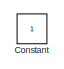
[diagram: root canvas - part 1/2, top left region]
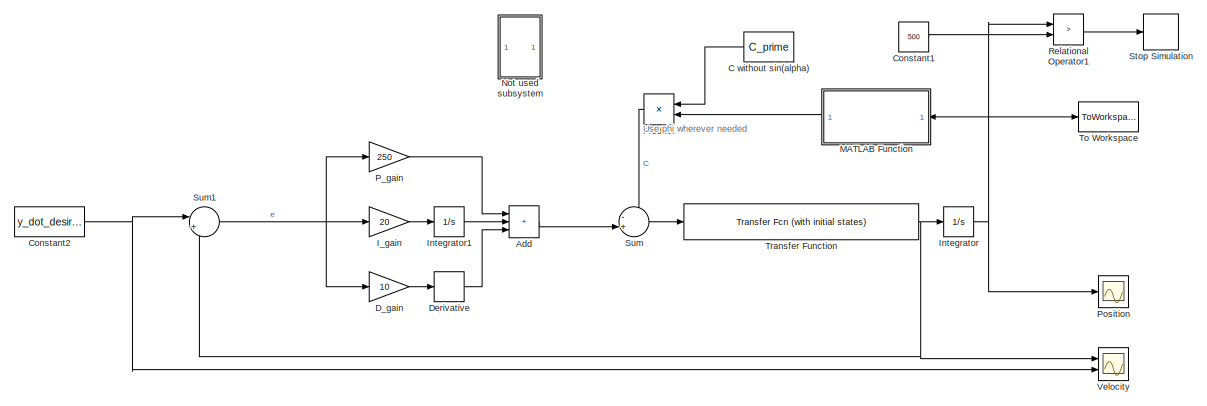
[diagram: root canvas - part 2/2, most of the canvas]
MODEL slx_dcd10c392fea
KIND model
CONFIG AbsTol = auto
CONFIG EnableMultiTasking = off
CONFIG FixedStep = 0.001
CONFIG MaxStep = auto
CONFIG MinStep = auto
CONFIG RelTol = 1e-3
CONFIG SampleTimeConstraint = Unconstrained
CONFIG SolverName = ode4
CONFIG StartTime = 0.0
CONFIG StopTime = 1200
WORKSPACE source: mxarray member
WORKSPACE A: Simulink.Parameter (value not decoded)
WORKSPACE B: Simulink.Parameter (value not decoded)
WORKSPACE C_prime: Simulink.Parameter (value not decoded)
WORKSPACE D: Simulink.Parameter (value not decoded)
WORKSPACE Iw: Simulink.Parameter (value not decoded)
WORKSPACE Kt = 0.0758
WORKSPACE Kv = 0.076
WORKSPACE mb = 0.4
WORKSPACE mc = 0.2
WORKSPACE mm = 0.34
WORKSPACE mt: Simulink.Parameter (value not decoded)
WORKSPACE mw: Simulink.Parameter (value not decoded)
WORKSPACE r = 0.39
WORKSPACE y_dot_desired = 0.5
BLOCK [Sum] Add
  IconShape = rectangular
  Inputs = +++
  Ports = [3, 1]
BLOCK [Constant] C without sin(alpha)
  Value = C_prime
BLOCK [Constant] Constant
  IOType = siggen
BLOCK [Constant] Constant1
  Value = 500
BLOCK [Constant] Constant2
  Value = y_dot_desired
BLOCK [Gain] D_gain
  Gain = 10
BLOCK [Derivative] Derivative
BLOCK [Gain] I_gain
  Gain = 20
BLOCK [Integrator] Integrator
  Ports = [1, 1]
BLOCK [Integrator] Integrator1
  Ports = [1, 1]
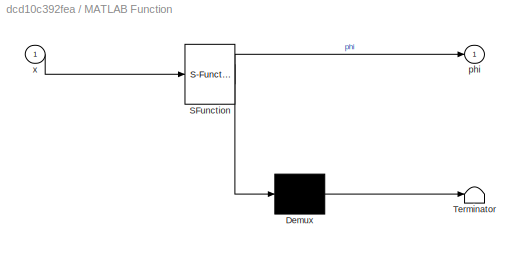
BLOCK [SubSystem] MATLAB Function
  ErrorFcn = Stateflow.Translate.translate
  PermitHierarchicalResolution = ExplicitOnly
  Ports = [1, 1]
  RequestExecContextInheritance = off
  SFBlockType = MATLAB Function
  TreatAsAtomicUnit = on
BLOCK [Demux] MATLAB Function/ Demux 
  Outputs = 1
  Ports = [1, 1]
BLOCK [S-Function] MATLAB Function/ SFunction 
  EnableBusSupport = on
  FunctionName = sf_sfun
  PortCounts = [1 2]
  Ports = [1, 2]
  SFcnIsStateOwnerBlock = off
  SFunctionDeploymentMode = off
  Tag = Stateflow S-Function 2
BLOCK [Terminator] MATLAB Function/ Terminator 
BLOCK [Outport] MATLAB Function/phi
  VectorParamsAs1DForOutWhenUnconnected = off
BLOCK [Inport] MATLAB Function/x
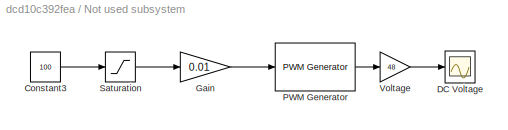
BLOCK [SubSystem] Not used subsystem
  Ports = []
  RequestExecContextInheritance = off
BLOCK [Constant] Not used subsystem/Constant3
  Value = 100
BLOCK [Scope] Not used subsystem/DC Voltage
  Floating = off
  NumInputPorts = 1
  Ports = [1]
  ScopeSpecificationString = Simulink.scopes.TimeScopeBlockCfg('CurrentConfiguration', extmgr.ConfigurationSet(extmgr.Configuration('Core','General UI',true),extmgr.Configuration('Core','Source UI',true),extmgr.Configuration('Sources','WiredSimulink',true),extmgr.Configuration('Visuals','Time Domain',true,'SerializedDisplays',{struct('MinYLimReal','38.00000','MaxYLimReal','58.00000','YLabelReal','','MinYLimMag','38.00000','Ma...<+1449ch>
BLOCK [Gain] Not used subsystem/Gain
  Gain = 0.01
BLOCK [Reference] Not used subsystem/PWM Generator  REF=eePwmGenerator/PWM Generator
  Ports = [1, 1]
  SourceBlock = eePwmGenerator/PWM Generator
  SourceProductBaseCode = PS
  SourceType = PWM Generator
BLOCK [Saturate] Not used subsystem/Saturation
  LowerLimit = 0
  UpperLimit = 100
BLOCK [Gain] Not used subsystem/Voltage
  Gain = 48
BLOCK [Gain] P_gain
  Gain = 250
BLOCK [Scope] Position
  Floating = off
  NumInputPorts = 1
  Ports = [1]
  ScopeSpecificationString = Simulink.scopes.TimeScopeBlockCfg('CurrentConfiguration', extmgr.ConfigurationSet(extmgr.Configuration('Core','General UI',true),extmgr.Configuration('Core','Source UI',true),extmgr.Configuration('Sources','WiredSimulink',true,'DataLoggingVariableName','ScopeData1'),extmgr.Configuration('Visuals','Time Domain',true,'SerializedDisplays',{struct('MinYLimReal','-62.50004','MaxYLimReal','562.50033','Y...<+1453ch>
BLOCK [Product] Product
  NameLocation = top
  Ports = [2, 1]
BLOCK [RelationalOperator] Relational Operator1
  InputSameDT = off
  Operator = >
  OutDataTypeStr = boolean
  Ports = [2, 1]
  RndMeth = Simplest
BLOCK [Stop] Stop Simulation
BLOCK [Sum] Sum
  Inputs = -+|
  Ports = [2, 1]
BLOCK [Sum] Sum1
  Inputs = |+-
  Ports = [2, 1]
BLOCK [ToWorkspace] To Workspace
  FixptAsFi = on
  MaxDataPoints = inf
  Ports = [1]
  SampleTime = -1
  VariableName = position
BLOCK [Reference] Transfer Function  REF=simulink_extras/Additional
Linear/Transfer Fcn
(with initial states)
  Ports = [1, 1]
  SourceBlock = simulink_extras/Additional\nLinear/Transfer Fcn\n(with initial states)
  SourceProductBaseCode = SL
  SourceType = Transfer Function with Initial States
BLOCK [Scope] Velocity
  Floating = off
  NumInputPorts = 2
  Ports = [2]
  ScopeSpecificationString = Simulink.scopes.TimeScopeBlockCfg('CurrentConfiguration', extmgr.ConfigurationSet(extmgr.Configuration('Core','General UI',true),extmgr.Configuration('Core','Source UI',true),extmgr.Configuration('Sources','WiredSimulink',true,'DataLoggingVariableName','ScopeData2'),extmgr.Configuration('Visuals','Time Domain',true,'SerializedDisplays',{struct('MinYLimReal','0.48832','MaxYLimReal','0.50394','YLabe...<+1459ch>
ANNOTATION (root): Use phi wherever needed
LINE Add:1 -> Sum:2
LINE C without sin(alpha):1 -> Product:1
LINE Constant1:1 -> Relational Operator1:2
NET Constant2:1 -> Sum1:1, Velocity:2
LINE D_gain:1 -> Derivative:1
LINE Derivative:1 -> Add:3
LINE I_gain:1 -> Integrator1:1
LINE Integrator1:1 -> Add:2
NET Integrator:1 -> MATLAB Function:1, Position:1, Relational Operator1:1, To Workspace:1
LINE MATLAB Function:1 -> Product:2
LINE Not used subsystem/Constant3:1 -> Not used subsystem/Saturation:1
LINE Not used subsystem/Gain:1 -> Not used subsystem/PWM Generator:1
LINE Not used subsystem/PWM Generator:1 -> Not used subsystem/Voltage:1
LINE Not used subsystem/Saturation:1 -> Not used subsystem/Gain:1
LINE Not used subsystem/Voltage:1 -> Not used subsystem/DC Voltage:1
LINE P_gain:1 -> Add:1
LINE Product:1 -> Sum:1
LINE Relational Operator1:1 -> Stop Simulation:1
NET Sum1:1 -> D_gain:1, I_gain:1, P_gain:1
LINE Sum:1 -> Transfer Function:1
NET Transfer Function:1 -> Integrator:1, Sum1:2, Velocity:1
note: NET lines group one-source signal fan-out (src -> all destinations, sorted); 1:1 wires keep LINE
CHART MATLAB Function states=1 transitions=1
  STATE_LABEL 'eML_blk_kernel()'
  STATE_LABEL 'SCRIPT:\nfunction phi = getInclination(x)\n\nif x < 250\n    phi = 0;\nelse\n    if x < 350\n        phi = sin(pi / 6);\n    else\n        phi = sin(pi / 18);\n    end\nend\n'
CHART  states=0 transitions=0
